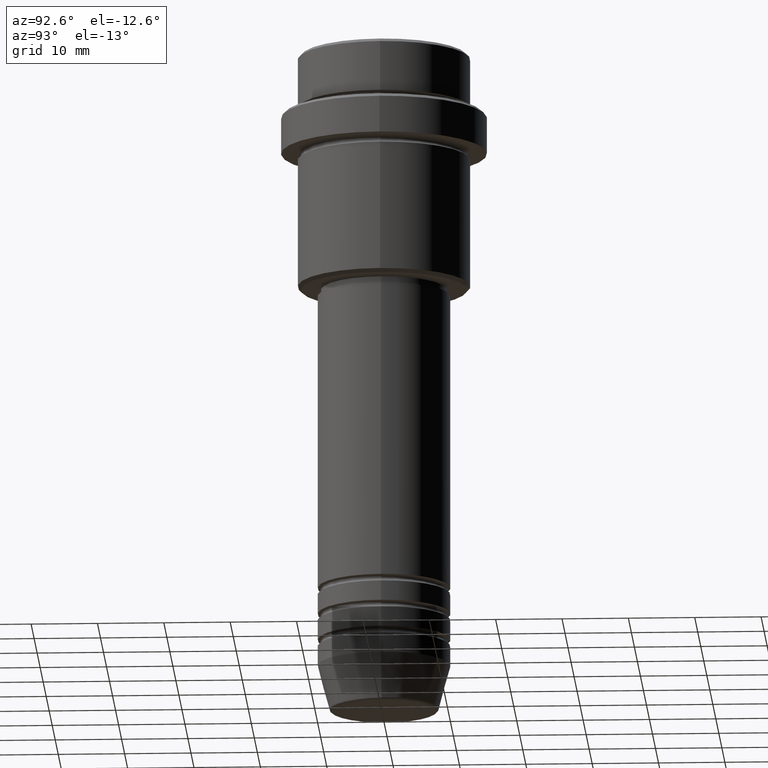
[diagram: clean part render]
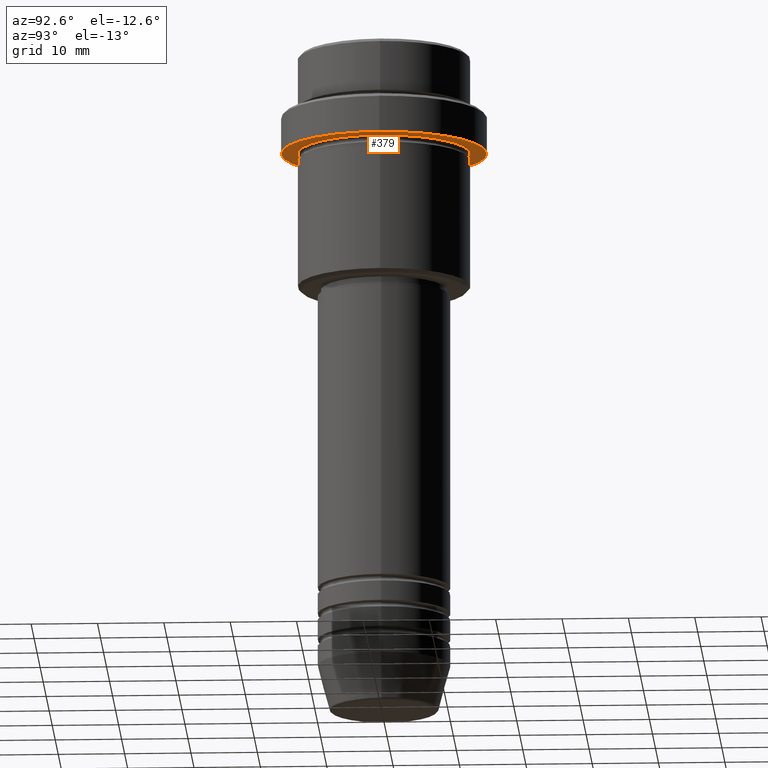
[diagram: same view with one face highlighted and labeled with its STEP entity id]
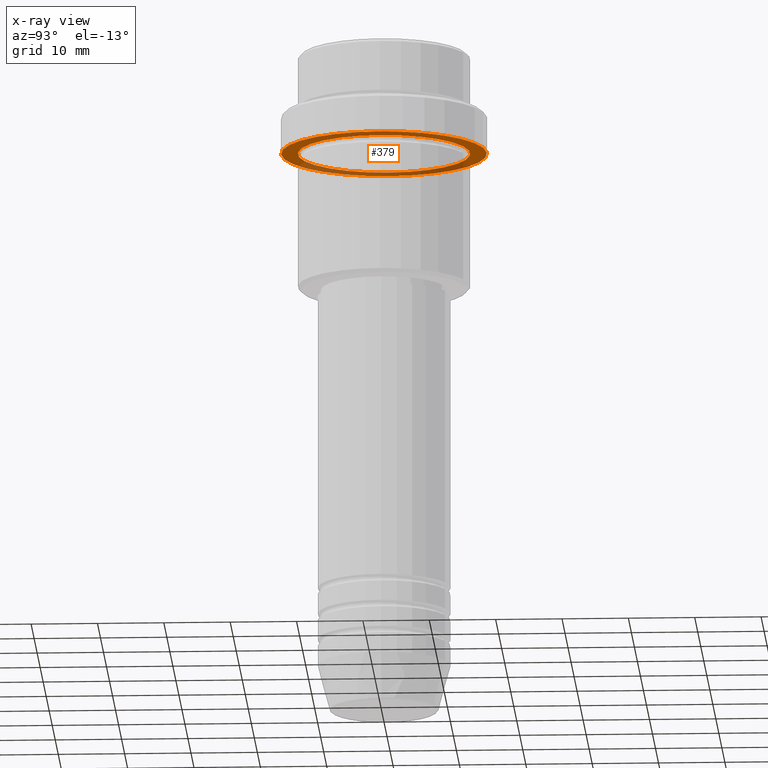
[diagram: x-ray of the same camera — body ghosted, the highlighted face saturated]
A machine part, auxiliary view. The second image highlights one B-rep face of the part: STEP entity #379.
The next image is the same camera in x-ray: the body ghosted, the highlighted face saturated — about 34% of this face is hidden behind the body in this view.
In plain terms, the highlighted planar face has unit normal (0, 0, -1).
Its self-contained STEP definition (entity closure, byte-faithful):
#39 = CARTESIAN_POINT ( 'NONE',  ( -12.99999999999999645, 0.000000000000000000, -15.00000000000000000 ) ) ;
#50 = EDGE_LOOP ( 'NONE', ( #407, #808 ) ) ;
#75 = VERTEX_POINT ( 'NONE', #39 ) ;
#90 = CARTESIAN_POINT ( 'NONE',  ( 12.99999999999999645, 1.592040838891558701E-15, -15.00000000000000000 ) ) ;
#93 = EDGE_CURVE ( 'NONE', #1067, #333, #1388, .T. ) ;
#101 = EDGE_CURVE ( 'NONE', #333, #1067, #922, .T. ) ;
#109 = FACE_OUTER_BOUND ( 'NONE', #50, .T. ) ;
#113 = CARTESIAN_POINT ( 'NONE',  ( 0.000000000000000000, 15.50000000000000000, -15.00000000000000000 ) ) ;
#187 = EDGE_CURVE ( 'NONE', #327, #75, #894, .T. ) ;
#193 = DIRECTION ( 'NONE',  ( -0.000000000000000000, -0.000000000000000000, 1.000000000000000000 ) ) ;
#201 = AXIS2_PLACEMENT_3D ( 'NONE', #528, #193, #1168 ) ;
#217 = FACE_BOUND ( 'NONE', #344, .T. ) ;
#253 = DIRECTION ( 'NONE',  ( 1.000000000000000000, 0.000000000000000000, 0.000000000000000000 ) ) ;
#256 = EDGE_CURVE ( 'NONE', #75, #327, #1012, .T. ) ;
#265 = ORIENTED_EDGE ( 'NONE', *, *, #187, .T. ) ;
#303 = CARTESIAN_POINT ( 'NONE',  ( -15.50000000000000000, 1.898202538678397557E-15, -15.00000000000000000 ) ) ;
#311 = CARTESIAN_POINT ( 'NONE',  ( 0.000000000000000000, 0.000000000000000000, -15.00000000000000000 ) ) ;
#327 = VERTEX_POINT ( 'NONE', #90 ) ;
#333 = VERTEX_POINT ( 'NONE', #303 ) ;
#344 = EDGE_LOOP ( 'NONE', ( #496, #265 ) ) ;
#379 = ADVANCED_FACE ( 'NONE', ( #217, #109 ), #666, .T. ) ;
#383 = CARTESIAN_POINT ( 'NONE',  ( 15.50000000000000000, 0.000000000000000000, -15.00000000000000000 ) ) ;
#407 = ORIENTED_EDGE ( 'NONE', *, *, #93, .F. ) ;
#418 = AXIS2_PLACEMENT_3D ( 'NONE', #113, #1306, #1004 ) ;
#487 = DIRECTION ( 'NONE',  ( -0.000000000000000000, -0.000000000000000000, 1.000000000000000000 ) ) ;
#496 = ORIENTED_EDGE ( 'NONE', *, *, #256, .T. ) ;
#508 = DIRECTION ( 'NONE',  ( -0.000000000000000000, -0.000000000000000000, 1.000000000000000000 ) ) ;
#528 = CARTESIAN_POINT ( 'NONE',  ( 0.000000000000000000, 0.000000000000000000, -15.00000000000000000 ) ) ;
#541 = AXIS2_PLACEMENT_3D ( 'NONE', #1147, #1237, #726 ) ;
#580 = AXIS2_PLACEMENT_3D ( 'NONE', #311, #508, #253 ) ;
#600 = CARTESIAN_POINT ( 'NONE',  ( 0.000000000000000000, 0.000000000000000000, -15.00000000000000000 ) ) ;
#666 = PLANE ( 'NONE',  #418 ) ;
#719 = DIRECTION ( 'NONE',  ( -1.000000000000000000, 0.000000000000000000, 0.000000000000000000 ) ) ;
#726 = DIRECTION ( 'NONE',  ( 1.000000000000000000, 0.000000000000000000, 0.000000000000000000 ) ) ;
#808 = ORIENTED_EDGE ( 'NONE', *, *, #101, .F. ) ;
#818 = AXIS2_PLACEMENT_3D ( 'NONE', #600, #487, #719 ) ;
#894 = CIRCLE ( 'NONE', #818, 12.99999999999999645 ) ;
#922 = CIRCLE ( 'NONE', #541, 15.50000000000000000 ) ;
#1004 = DIRECTION ( 'NONE',  ( -1.000000000000000000, 0.000000000000000000, -0.000000000000000000 ) ) ;
#1012 = CIRCLE ( 'NONE', #201, 12.99999999999999645 ) ;
#1067 = VERTEX_POINT ( 'NONE', #383 ) ;
#1147 = CARTESIAN_POINT ( 'NONE',  ( 0.000000000000000000, 0.000000000000000000, -15.00000000000000000 ) ) ;
#1168 = DIRECTION ( 'NONE',  ( -1.000000000000000000, 0.000000000000000000, 0.000000000000000000 ) ) ;
#1237 = DIRECTION ( 'NONE',  ( -0.000000000000000000, -0.000000000000000000, 1.000000000000000000 ) ) ;
#1306 = DIRECTION ( 'NONE',  ( 0.000000000000000000, 0.000000000000000000, -1.000000000000000000 ) ) ;
#1388 = CIRCLE ( 'NONE', #580, 15.50000000000000000 ) ;